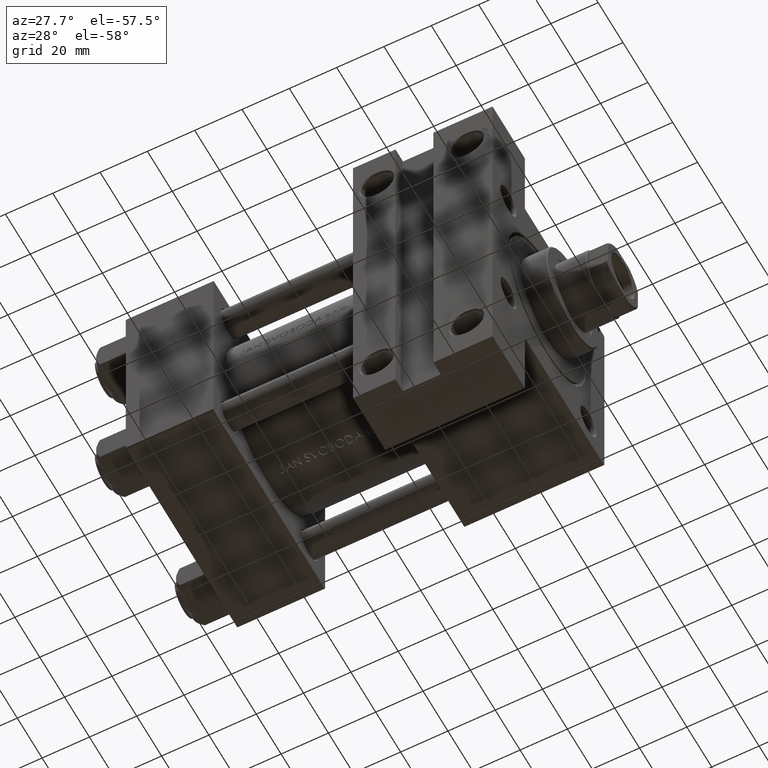
[diagram: clean part render]
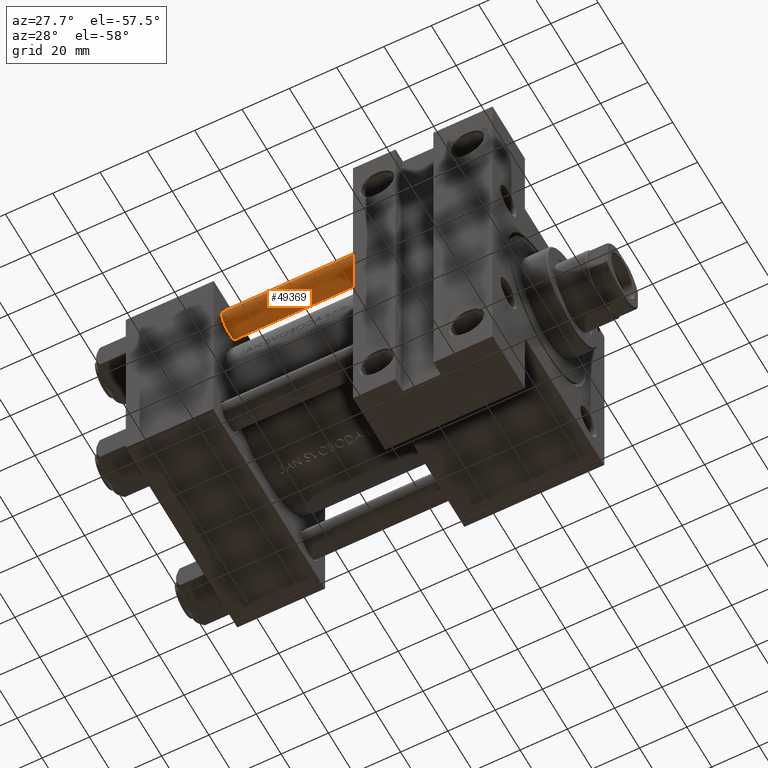
[diagram: same view with one face highlighted and labeled with its STEP entity id]
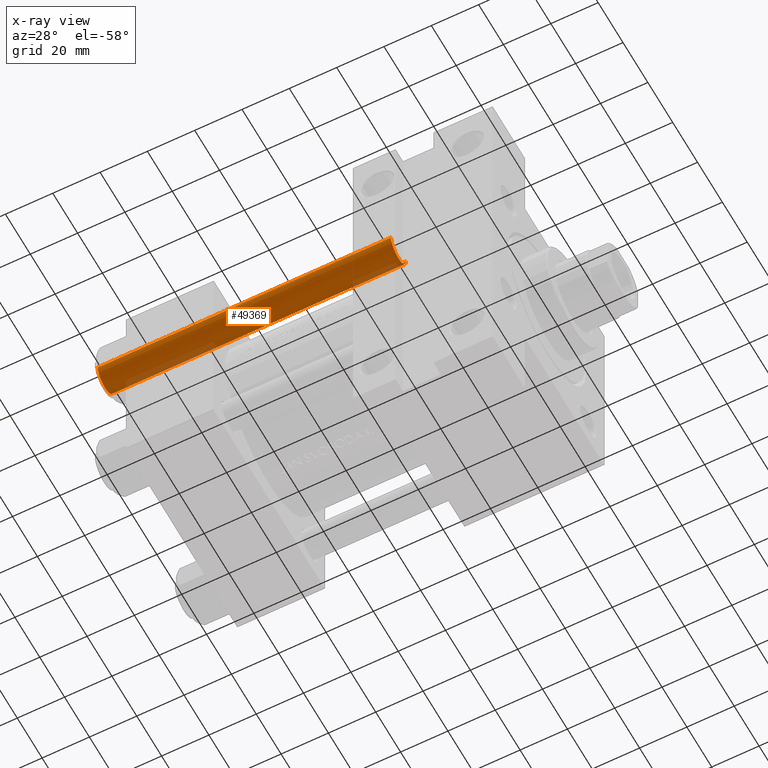
[diagram: x-ray of the same camera — body ghosted, the highlighted face saturated]
A machine part, auxiliary view. The second image highlights one B-rep face of the part: STEP entity #49369.
The next image is the same camera in x-ray: the body ghosted, the highlighted face saturated — about 10% of this face is hidden behind the body in this view.
In plain terms, the highlighted cylindrical surface (edge-blend (fillet) strip) has radius 6 mm, axis along (-1, 0, 0).
Its self-contained STEP definition (entity closure, byte-faithful):
#1065 = DIRECTION ( 'NONE',  ( -1.000000000000000000, 0.000000000000000000, 0.000000000000000000 ) ) ;
#2590 = ORIENTED_EDGE ( 'NONE', *, *, #48794, .T. ) ;
#3969 = CIRCLE ( 'NONE', #46539, 6.000000000000000888 ) ;
#5543 = CARTESIAN_POINT ( 'NONE',  ( 6.000000000000000888, 7.347880794884120722E-16, 124.5000000000000000 ) ) ;
#7305 = CARTESIAN_POINT ( 'NONE',  ( -6.000000000000000888, 0.000000000000000000, 125.0000000000000000 ) ) ;
#9755 = CARTESIAN_POINT ( 'NONE',  ( -6.000000000000000888, 0.000000000000000000, 0.4999999999999865663 ) ) ;
#12049 = EDGE_CURVE ( 'NONE', #45745, #14308, #13867, .T. ) ;
#13867 = LINE ( 'NONE', #18376, #49411 ) ;
#14308 = VERTEX_POINT ( 'NONE', #32585 ) ;
#15072 = VECTOR ( 'NONE', #18363, 1000.000000000000000 ) ;
#18363 = DIRECTION ( 'NONE',  ( -0.000000000000000000, -0.000000000000000000, -1.000000000000000000 ) ) ;
#18376 = CARTESIAN_POINT ( 'NONE',  ( 6.000000000000000888, 7.347880794884120722E-16, 125.0000000000000000 ) ) ;
#19400 = FACE_OUTER_BOUND ( 'NONE', #48323, .T. ) ;
#19465 = CIRCLE ( 'NONE', #33101, 6.000000000000000888 ) ;
#21306 = EDGE_CURVE ( 'NONE', #14308, #32185, #3969, .T. ) ;
#21674 = DIRECTION ( 'NONE',  ( -0.000000000000000000, -0.000000000000000000, -1.000000000000000000 ) ) ;
#23114 = VERTEX_POINT ( 'NONE', #27462 ) ;
#27462 = CARTESIAN_POINT ( 'NONE',  ( -6.000000000000000888, 0.000000000000000000, 124.5000000000000000 ) ) ;
#28196 = ORIENTED_EDGE ( 'NONE', *, *, #12049, .T. ) ;
#30700 = AXIS2_PLACEMENT_3D ( 'NONE', #34751, #46820, #1065 ) ;
#31221 = CYLINDRICAL_SURFACE ( 'NONE', #30700, 6.000000000000000888 ) ;
#32185 = VERTEX_POINT ( 'NONE', #9755 ) ;
#32585 = CARTESIAN_POINT ( 'NONE',  ( 6.000000000000000888, 7.347880794884120722E-16, 0.4999999999999865663 ) ) ;
#33101 = AXIS2_PLACEMENT_3D ( 'NONE', #45874, #49399, #49647 ) ;
#33246 = ORIENTED_EDGE ( 'NONE', *, *, #35124, .F. ) ;
#34751 = CARTESIAN_POINT ( 'NONE',  ( 0.000000000000000000, 0.000000000000000000, 125.0000000000000000 ) ) ;
#35025 = ORIENTED_EDGE ( 'NONE', *, *, #21306, .T. ) ;
#35124 = EDGE_CURVE ( 'NONE', #23114, #32185, #42259, .T. ) ;
#36647 = DIRECTION ( 'NONE',  ( 1.000000000000000000, 0.000000000000000000, 0.000000000000000000 ) ) ;
#42259 = LINE ( 'NONE', #7305, #15072 ) ;
#43950 = DIRECTION ( 'NONE',  ( -0.000000000000000000, -0.000000000000000000, 1.000000000000000000 ) ) ;
#44698 = CARTESIAN_POINT ( 'NONE',  ( 0.000000000000000000, 0.000000000000000000, 0.4999999999999865663 ) ) ;
#45745 = VERTEX_POINT ( 'NONE', #5543 ) ;
#45874 = CARTESIAN_POINT ( 'NONE',  ( 0.000000000000000000, 0.000000000000000000, 124.5000000000000000 ) ) ;
#46539 = AXIS2_PLACEMENT_3D ( 'NONE', #44698, #43950, #36647 ) ;
#46820 = DIRECTION ( 'NONE',  ( -0.000000000000000000, -0.000000000000000000, -1.000000000000000000 ) ) ;
#48323 = EDGE_LOOP ( 'NONE', ( #2590, #28196, #35025, #33246 ) ) ;
#48794 = EDGE_CURVE ( 'NONE', #23114, #45745, #19465, .T. ) ;
#49369 = ADVANCED_FACE ( 'NONE', ( #19400 ), #31221, .T. ) ;
#49399 = DIRECTION ( 'NONE',  ( 0.000000000000000000, 0.000000000000000000, -1.000000000000000000 ) ) ;
#49411 = VECTOR ( 'NONE', #21674, 1000.000000000000000 ) ;
#49647 = DIRECTION ( 'NONE',  ( 1.000000000000000000, 0.000000000000000000, 0.000000000000000000 ) ) ;